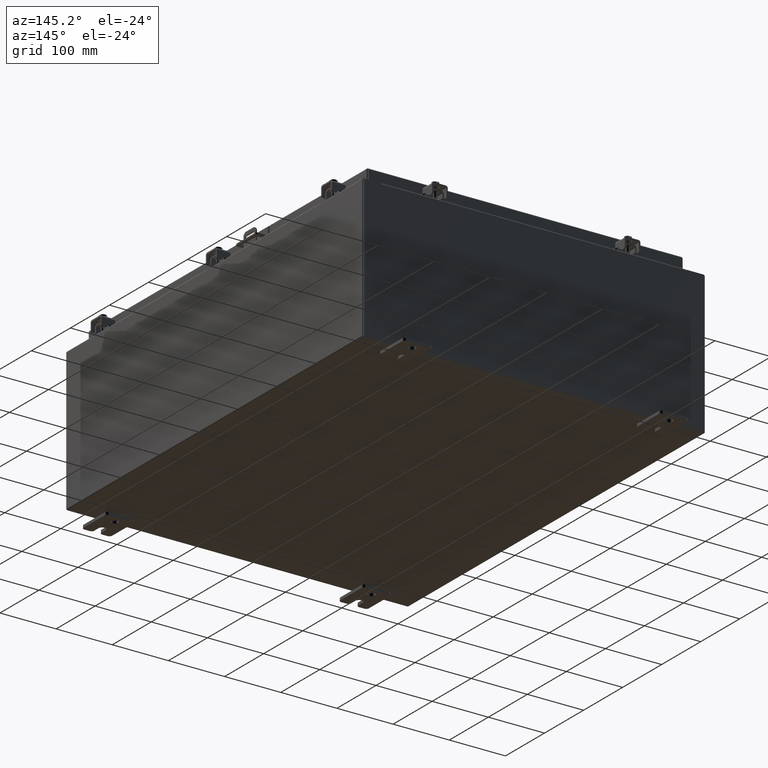
[diagram: clean part render]
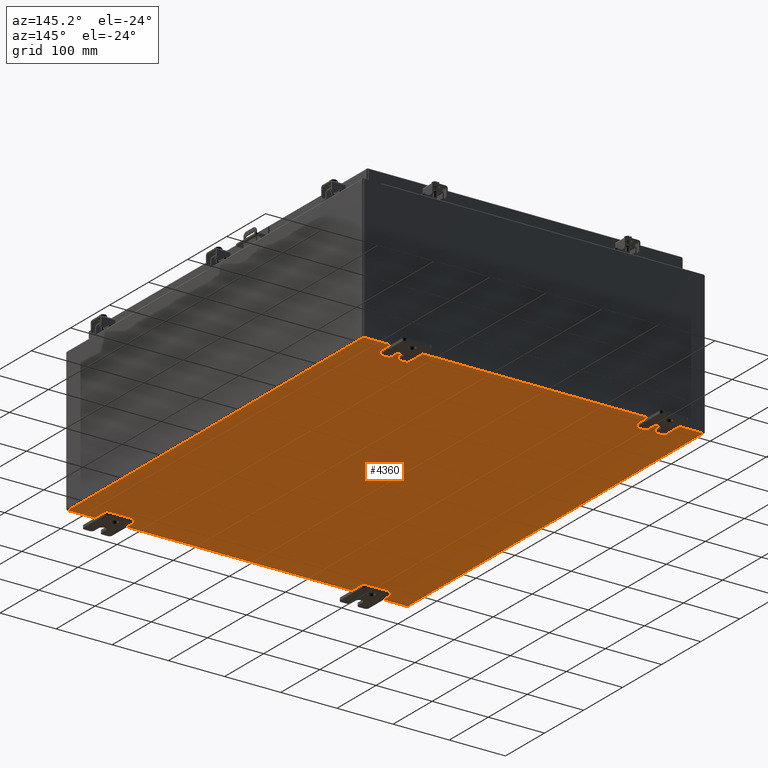
[diagram: same view with one face highlighted and labeled with its STEP entity id]
A machine part, auxiliary view. The second image highlights one B-rep face of the part: STEP entity #4360.
In plain terms, the highlighted planar face has unit normal (0, 0, -1).
Its self-contained STEP definition (entity closure, byte-faithful):
#4319 = LINE ( 'NONE', #21717, #19891 ) ;
#4360 = ADVANCED_FACE ( 'NONE', ( #9139 ), #10842, .T. ) ;
#5134 = LINE ( 'NONE', #26915, #6046 ) ;
#5540 = LINE ( 'NONE', #16189, #21073 ) ;
#6046 = VECTOR ( 'NONE', #9452, 39.37007874015748100 ) ;
#6078 = VERTEX_POINT ( 'NONE', #26598 ) ;
#8349 = VECTOR ( 'NONE', #21995, 39.37007874015748100 ) ;
#9139 = FACE_OUTER_BOUND ( 'NONE', #14107, .T. ) ;
#9452 = DIRECTION ( 'NONE',  ( 1.000000000000000000, 0.0000000000000000000, 0.0000000000000000000 ) ) ;
#10842 = PLANE ( 'NONE',  #25721 ) ;
#13631 = CARTESIAN_POINT ( 'NONE',  ( 0.0000000000000000000, 0.0000000000000000000, -0.07469999999999998900 ) ) ;
#13747 = CARTESIAN_POINT ( 'NONE',  ( -11.91230000000000500, 14.92530000000000000, -0.07469999999999998900 ) ) ;
#13765 = DIRECTION ( 'NONE',  ( -1.000000000000000000, 0.0000000000000000000, -0.0000000000000000000 ) ) ;
#14107 = EDGE_LOOP ( 'NONE', ( #17570, #26298, #26768, #21296 ) ) ;
#16118 = LINE ( 'NONE', #33775, #8349 ) ;
#16189 = CARTESIAN_POINT ( 'NONE',  ( -11.91230000000000500, -14.92530000000000000, -0.07469999999999996100 ) ) ;
#17570 = ORIENTED_EDGE ( 'NONE', *, *, #29906, .F. ) ;
#17821 = EDGE_CURVE ( 'NONE', #33883, #21732, #4319, .T. ) ;
#19891 = VECTOR ( 'NONE', #36294, 39.37007874015748100 ) ;
#21073 = VECTOR ( 'NONE', #36646, 39.37007874015748100 ) ;
#21296 = ORIENTED_EDGE ( 'NONE', *, *, #17821, .T. ) ;
#21717 = CARTESIAN_POINT ( 'NONE',  ( 11.91229999999999700, 14.92530000000000000, -0.07470000000000225100 ) ) ;
#21732 = VERTEX_POINT ( 'NONE', #36222 ) ;
#21995 = DIRECTION ( 'NONE',  ( -1.000000000000000000, -0.0000000000000000000, -0.0000000000000000000 ) ) ;
#25721 = AXIS2_PLACEMENT_3D ( 'NONE', #13631, #31297, #13765 ) ;
#26298 = ORIENTED_EDGE ( 'NONE', *, *, #30622, .T. ) ;
#26598 = CARTESIAN_POINT ( 'NONE',  ( -11.91230000000000500, -14.92530000000000000, -0.07469999999999996100 ) ) ;
#26768 = ORIENTED_EDGE ( 'NONE', *, *, #37238, .F. ) ;
#26915 = CARTESIAN_POINT ( 'NONE',  ( -12.00000000000000500, -14.92530000000000000, -0.07469999999999998900 ) ) ;
#29906 = EDGE_CURVE ( 'NONE', #6078, #21732, #5134, .T. ) ;
#30622 = EDGE_CURVE ( 'NONE', #6078, #34237, #5540, .T. ) ;
#31297 = DIRECTION ( 'NONE',  ( 0.0000000000000000000, 0.0000000000000000000, -1.000000000000000000 ) ) ;
#33775 = CARTESIAN_POINT ( 'NONE',  ( -12.00000000000000500, 14.92530000000000000, -0.07469999999999998900 ) ) ;
#33883 = VERTEX_POINT ( 'NONE', #35734 ) ;
#34237 = VERTEX_POINT ( 'NONE', #13747 ) ;
#35734 = CARTESIAN_POINT ( 'NONE',  ( 11.91229999999999700, 14.92530000000000000, -0.07470000000000225100 ) ) ;
#36222 = CARTESIAN_POINT ( 'NONE',  ( 11.91229999999998800, -14.92530000000000000, -0.07469999999999998900 ) ) ;
#36294 = DIRECTION ( 'NONE',  ( -0.0000000000000000000, -1.000000000000000000, 8.208677865577646300E-017 ) ) ;
#36646 = DIRECTION ( 'NONE',  ( -0.0000000000000000000, 1.000000000000000000, -0.0000000000000000000 ) ) ;
#37238 = EDGE_CURVE ( 'NONE', #33883, #34237, #16118, .T. ) ;